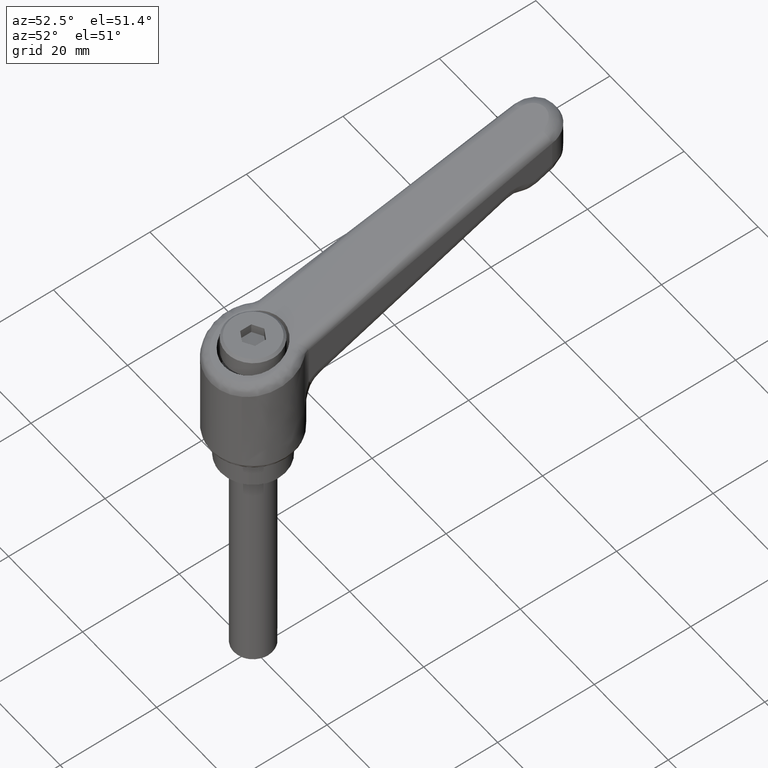
[diagram: clean part render]
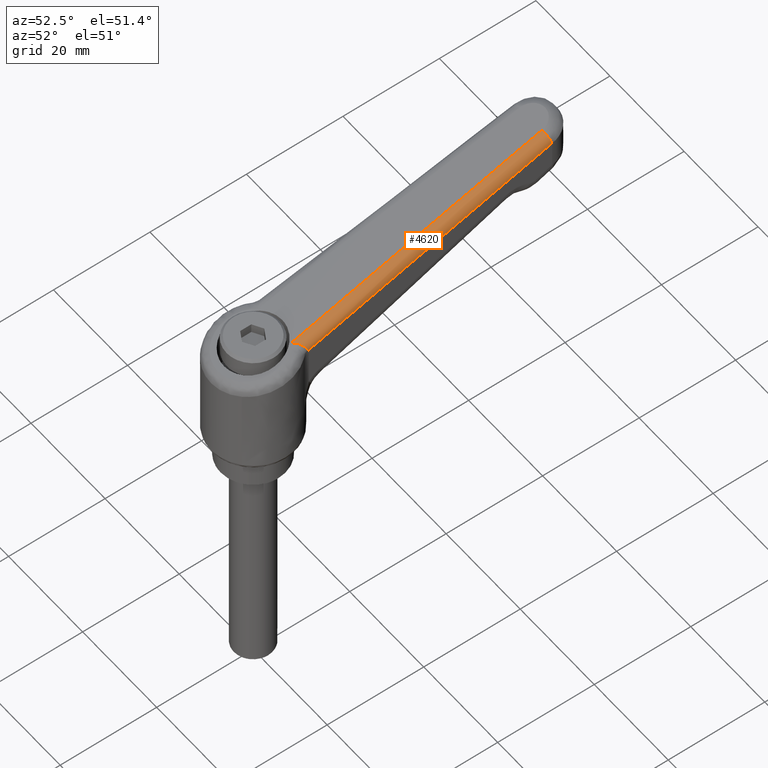
[diagram: same view with one face highlighted and labeled with its STEP entity id]
A machine part, auxiliary view. The second image highlights one B-rep face of the part: STEP entity #4620.
In plain terms, the highlighted face is a freeform B-spline surface patch.
Its self-contained STEP definition (entity closure, byte-faithful):
#4386=CARTESIAN_POINT('',(6.473641861336390,-6.482310283934461,28.545761944539251));
#4387=VERTEX_POINT('',#4386);
#4478=CARTESIAN_POINT('',(4.498035217750171,-4.523532370376100,30.106748746074850));
#4479=VERTEX_POINT('',#4478);
#4480=CARTESIAN_POINT('',(4.498035217750171,-4.523532370376100,30.106748746074850));
#4481=CARTESIAN_POINT('',(4.521530737226824,-4.551055093359092,30.112970555919659));
#4482=CARTESIAN_POINT('',(4.545559772986082,-4.579156544781577,30.118706576997059));
#4483=CARTESIAN_POINT('',(4.593286840806678,-4.635060256906408,30.128809281383500));
#4484=CARTESIAN_POINT('',(4.617166862643507,-4.663042505200080,30.133226949248598));
#4485=CARTESIAN_POINT('',(4.688871669821537,-4.747068840692488,30.144557869744659));
#4486=CARTESIAN_POINT('',(4.784649775553830,-4.859316547581914,30.154546753870129));
#4487=CARTESIAN_POINT('',(4.880954172517021,-4.971859110935052,30.153926592986799));
#4488=CARTESIAN_POINT('',(4.977630351430150,-5.084477204269985,30.147703002248161));
#4489=CARTESIAN_POINT('',(5.026099949052264,-5.140758480592126,30.141769535955689));
#4490=CARTESIAN_POINT('',(5.170302454065685,-5.307340098412296,30.115437051763490));
#4491=CARTESIAN_POINT('',(5.265451263719941,-5.416124954692790,30.086558951413789));
#4492=CARTESIAN_POINT('',(5.407200527464202,-5.574976373655977,30.024534794989972));
#4493=CARTESIAN_POINT('',(5.454467617006594,-5.627397537506078,30.000617850179630));
#4494=CARTESIAN_POINT('',(5.547904623446285,-5.729618734974594,29.946462878272559));
#4495=CARTESIAN_POINT('',(5.593836704652301,-5.779163160940287,29.916390468658449));
#4496=CARTESIAN_POINT('',(5.729373357644339,-5.922813030588292,29.816944710364009));
#4497=CARTESIAN_POINT('',(5.816742887444385,-6.012007629509848,29.738466849451171));
#4498=CARTESIAN_POINT('',(5.985513219837730,-6.174390096002871,29.553467741994961));
#4499=CARTESIAN_POINT('',(6.063968007099758,-6.244710281576310,29.450123294386160));
#4500=CARTESIAN_POINT('',(6.172375601449239,-6.332033748429596,29.278596150230658));
#4501=CARTESIAN_POINT('',(6.206978291076652,-6.358119235474552,29.218619577811591));
#4502=CARTESIAN_POINT('',(6.272939574123053,-6.403672311553694,29.092610961745759));
#4503=CARTESIAN_POINT('',(6.303676784882838,-6.422697107985434,29.027731856309789));
#4504=CARTESIAN_POINT('',(6.388640446365967,-6.468168589100186,28.829032717296030));
#4505=CARTESIAN_POINT('',(6.436053584748850,-6.483390116421460,28.690594948947609));
#4506=CARTESIAN_POINT('',(6.473641861336390,-6.482310283934461,28.545761944539251));
#4507=B_SPLINE_CURVE_WITH_KNOTS('',3,(#4480,#4481,#4482,#4483,#4484,#4485,#4486,#4487,#4488,#4489,#4490,#4491,#4492,#4493,#4494,#4495,#4496,#4497,#4498,#4499,#4500,#4501,#4502,#4503,#4504,#4505,#4506),.UNSPECIFIED.,.F.,.U.,(4,2,2,1,2,2,2,2,2,2,2,2,2,4),(0.0,0.031250000000000,0.062500000000000,0.125000000000000,0.187500000000001,0.250000000000001,0.375000000000001,0.437500000000001,0.500000000000001,0.625000000000001,0.750000000000002,0.812500000000001,0.875000000000000,1.0),.UNSPECIFIED.);
#4508=EDGE_CURVE('',#4479,#4387,#4507,.T.);
#4577=CARTESIAN_POINT('',(3.759052792316054,-6.558977941750454,27.751878889027719));
#4578=CARTESIAN_POINT('',(59.522175215438402,-4.957020186948475,42.518419565375858));
#4579=CARTESIAN_POINT('',(3.188225801290650,-6.656748433436371,29.918108629724831));
#4580=CARTESIAN_POINT('',(58.951348224412982,-5.054790678634391,44.684649306072963));
#4581=CARTESIAN_POINT('',(3.168623212615539,-4.420867098112182,29.749573158460006));
#4582=CARTESIAN_POINT('',(58.931745635737883,-2.818909343310203,44.516113834808138));
#4590=(BOUNDED_SURFACE()B_SPLINE_SURFACE(1,2,((#4577,#4579,#4581),(#4578,#4580,#4582)),.UNSPECIFIED.,.F.,.F.,.U.)B_SPLINE_SURFACE_WITH_KNOTS((2,2),(3,3),(0.0,57.707389601077473),(0.0,3.584355081101085),.UNSPECIFIED.)GEOMETRIC_REPRESENTATION_ITEM()RATIONAL_B_SPLINE_SURFACE(((1.0,0.664432629144145,0.996394314401954),(1.0,0.664432629144145,0.996394314401954)))REPRESENTATION_ITEM('')SURFACE());
#4591=CARTESIAN_POINT('',(57.574177916736303,-2.998765917262975,44.161754743788748));
#4592=VERTEX_POINT('',#4591);
#4593=CARTESIAN_POINT('',(4.498035217750171,-4.523532370376100,30.106748746074850));
#4594=CARTESIAN_POINT('',(57.574177916736303,-2.998765917262975,44.161754743788748));
#4595=QUASI_UNIFORM_CURVE('',1,(#4593,#4594),.UNSPECIFIED.,.F.,.U.);
#4596=EDGE_CURVE('',#4479,#4592,#4595,.T.);
#4597=ORIENTED_EDGE('',*,*,#4596,.F.);
#4598=ORIENTED_EDGE('',*,*,#4508,.T.);
#4599=CARTESIAN_POINT('',(58.143580295737003,-4.997941135143631,42.228393305217850));
#4600=VERTEX_POINT('',#4599);
#4601=CARTESIAN_POINT('',(58.143580295737003,-4.997941135143631,42.228393305217850));
#4602=CARTESIAN_POINT('',(6.473641861336390,-6.482310283934461,28.545761944539251));
#4603=QUASI_UNIFORM_CURVE('',1,(#4601,#4602),.UNSPECIFIED.,.F.,.U.);
#4604=EDGE_CURVE('',#4600,#4387,#4603,.T.);
#4605=ORIENTED_EDGE('',*,*,#4604,.F.);
#4606=CARTESIAN_POINT('',(58.143580295737003,-4.997941135143631,42.228393305217850));
#4607=CARTESIAN_POINT('',(58.105737727187012,-4.999051737375922,42.371419283137037));
#4608=CARTESIAN_POINT('',(58.024847862661680,-4.966538182741298,42.673357711036822));
#4609=CARTESIAN_POINT('',(57.896258718068907,-4.796438599127085,43.140497579225432));
#4610=CARTESIAN_POINT('',(57.783927799637731,-4.511304846702831,43.533761692858761));
#4611=CARTESIAN_POINT('',(57.684489912120142,-4.112288504533463,43.865983022081302));
#4612=CARTESIAN_POINT('',(57.607957906965922,-3.623165050008039,44.101929174810493));
#4613=CARTESIAN_POINT('',(57.579887474303924,-3.212397277227530,44.163369587552687));
#4614=CARTESIAN_POINT('',(57.574177916736303,-2.998765917262975,44.161754743788748));
#4615=B_SPLINE_CURVE_WITH_KNOTS('',3,(#4606,#4607,#4608,#4609,#4610,#4611,#4612,#4613,#4614),.UNSPECIFIED.,.F.,.U.,(4,1,1,1,1,1,4),(0.000000111731145,0.443860887408371,0.937055975702422,1.528882561124156,1.923401924050224,2.515243170422755,3.156374501171960),.UNSPECIFIED.);
#4616=EDGE_CURVE('',#4600,#4592,#4615,.T.);
#4617=ORIENTED_EDGE('',*,*,#4616,.T.);
#4618=EDGE_LOOP('',(#4597,#4598,#4605,#4617));
#4619=FACE_OUTER_BOUND('',#4618,.T.);
#4620=ADVANCED_FACE('',(#4619),#4590,.T.);